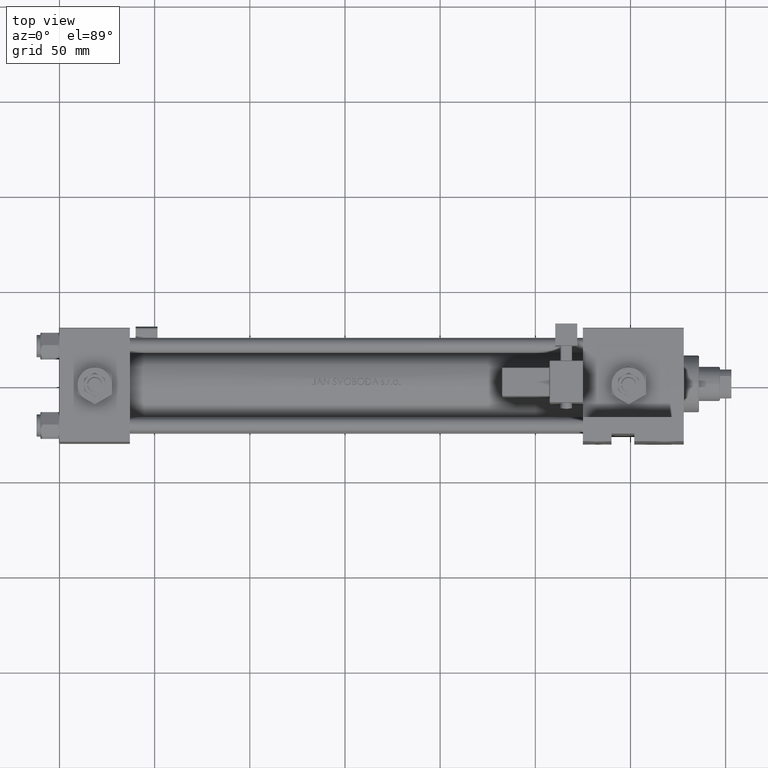
[diagram: clean part render]
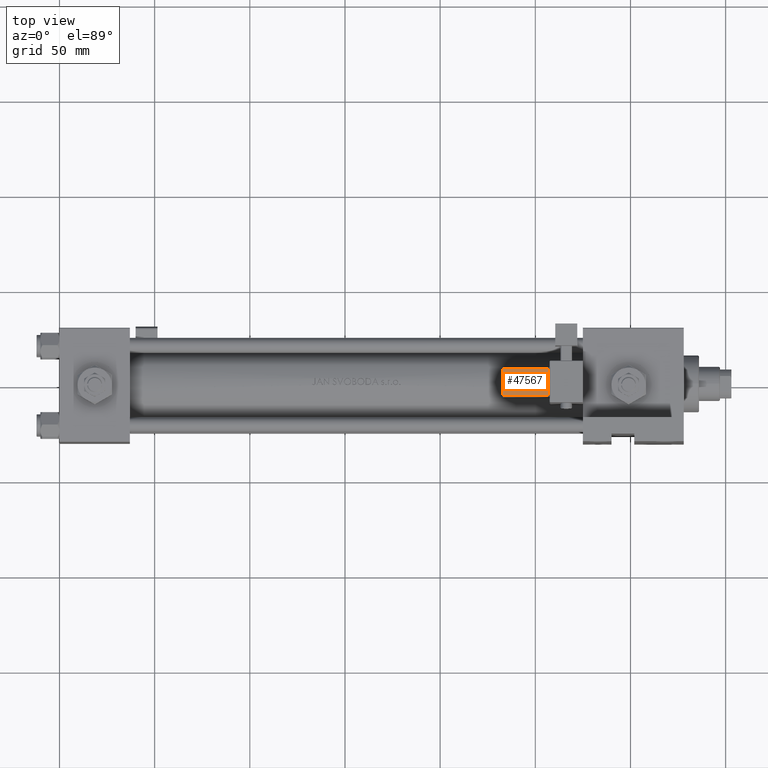
[diagram: same view with one face highlighted and labeled with its STEP entity id]
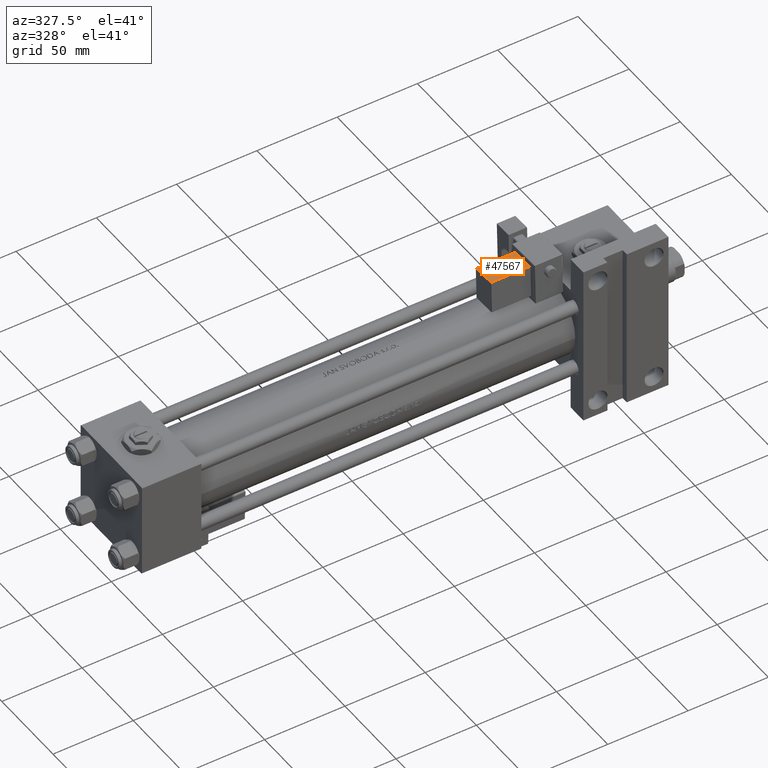
[diagram: same view with one face highlighted and labeled with its STEP entity id]
A machine part, top view. The second image highlights one B-rep face of the part: STEP entity #47567.
A second angle (auxiliary view) of the same face is appended — the face is thin or edge-on in the first view.
In plain terms, the highlighted planar face has unit normal (0, -0.0353, -0.9994).
Its self-contained STEP definition (entity closure, byte-faithful):
#881 = EDGE_CURVE ( 'NONE', #46529, #28521, #10910, .T. ) ;
#1998 = VECTOR ( 'NONE', #37934, 1000.000000000000000 ) ;
#2683 = DIRECTION ( 'NONE',  ( 5.473822126268816683E-48, -1.000000000000000000, -1.156482317317871725E-16 ) ) ;
#3655 = DIRECTION ( 'NONE',  ( -1.543213096464132036E-32, 1.000000000000000000, 1.156482317317871725E-16 ) ) ;
#6090 = LINE ( 'NONE', #22463, #9255 ) ;
#8898 = EDGE_CURVE ( 'NONE', #12348, #46529, #6090, .T. ) ;
#9255 = VECTOR ( 'NONE', #38763, 1000.000000000000000 ) ;
#9382 = ORIENTED_EDGE ( 'NONE', *, *, #881, .T. ) ;
#9513 = FACE_OUTER_BOUND ( 'NONE', #14585, .T. ) ;
#9813 = LINE ( 'NONE', #25402, #1998 ) ;
#10910 = LINE ( 'NONE', #39818, #24416 ) ;
#12348 = VERTEX_POINT ( 'NONE', #27139 ) ;
#13287 = VECTOR ( 'NONE', #2683, 1000.000000000000000 ) ;
#14585 = EDGE_LOOP ( 'NONE', ( #27350, #16641, #9382, #26471 ) ) ;
#16641 = ORIENTED_EDGE ( 'NONE', *, *, #8898, .T. ) ;
#16797 = VERTEX_POINT ( 'NONE', #22682 ) ;
#18097 = EDGE_CURVE ( 'NONE', #16797, #12348, #47166, .T. ) ;
#19043 = CARTESIAN_POINT ( 'NONE',  ( 9.250000000000005329, -31.74999999999999289, 2.000000000000005329 ) ) ;
#19065 = CARTESIAN_POINT ( 'NONE',  ( 33.25000000000000000, -32.24999999999999289, 2.000000000000008438 ) ) ;
#22463 = CARTESIAN_POINT ( 'NONE',  ( 33.75000000000000000, -31.74999999999999289, 2.000000000000008438 ) ) ;
#22682 = CARTESIAN_POINT ( 'NONE',  ( 33.25000000000000000, -17.74999999999999645, 2.000000000000010214 ) ) ;
#23411 = EDGE_CURVE ( 'NONE', #28521, #16797, #9813, .T. ) ;
#24416 = VECTOR ( 'NONE', #3655, 1000.000000000000000 ) ;
#25090 = PLANE ( 'NONE',  #31646 ) ;
#25402 = CARTESIAN_POINT ( 'NONE',  ( 33.75000000000000000, -17.74999999999999645, 2.000000000000010214 ) ) ;
#26471 = ORIENTED_EDGE ( 'NONE', *, *, #23411, .T. ) ;
#27139 = CARTESIAN_POINT ( 'NONE',  ( 33.25000000000000000, -31.74999999999999289, 2.000000000000008438 ) ) ;
#27350 = ORIENTED_EDGE ( 'NONE', *, *, #18097, .T. ) ;
#28521 = VERTEX_POINT ( 'NONE', #50912 ) ;
#31646 = AXIS2_PLACEMENT_3D ( 'NONE', #41400, #33644, #41665 ) ;
#33644 = DIRECTION ( 'NONE',  ( -1.334402673828313339E-16, -1.156482317317871725E-16, 1.000000000000000000 ) ) ;
#37934 = DIRECTION ( 'NONE',  ( 1.000000000000000000, -0.000000000000000000, 1.334402673828313339E-16 ) ) ;
#38763 = DIRECTION ( 'NONE',  ( -1.000000000000000000, 0.000000000000000000, -1.334402673828313339E-16 ) ) ;
#39818 = CARTESIAN_POINT ( 'NONE',  ( 9.250000000000005329, -17.24999999999999289, 2.000000000000007105 ) ) ;
#41400 = CARTESIAN_POINT ( 'NONE',  ( 33.75000000000000000, -17.24999999999999289, 2.000000000000010214 ) ) ;
#41665 = DIRECTION ( 'NONE',  ( 1.000000000000000000, 0.000000000000000000, 1.334402673828313339E-16 ) ) ;
#46529 = VERTEX_POINT ( 'NONE', #19043 ) ;
#47166 = LINE ( 'NONE', #19065, #13287 ) ;
#47567 = ADVANCED_FACE ( 'NONE', ( #9513 ), #25090, .F. ) ;
#50912 = CARTESIAN_POINT ( 'NONE',  ( 9.250000000000005329, -17.74999999999999645, 2.000000000000006661 ) ) ;